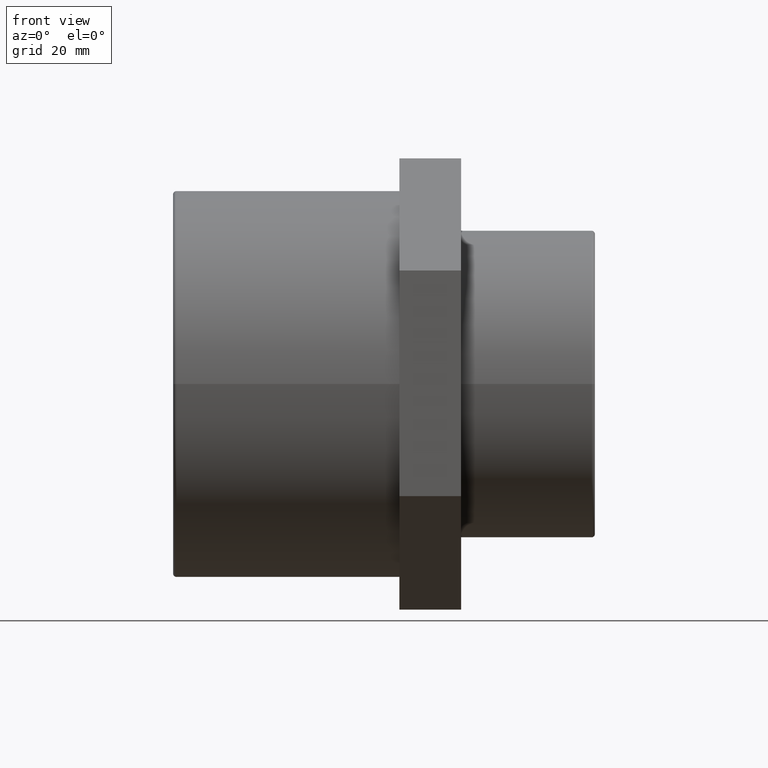
[diagram: clean part render]
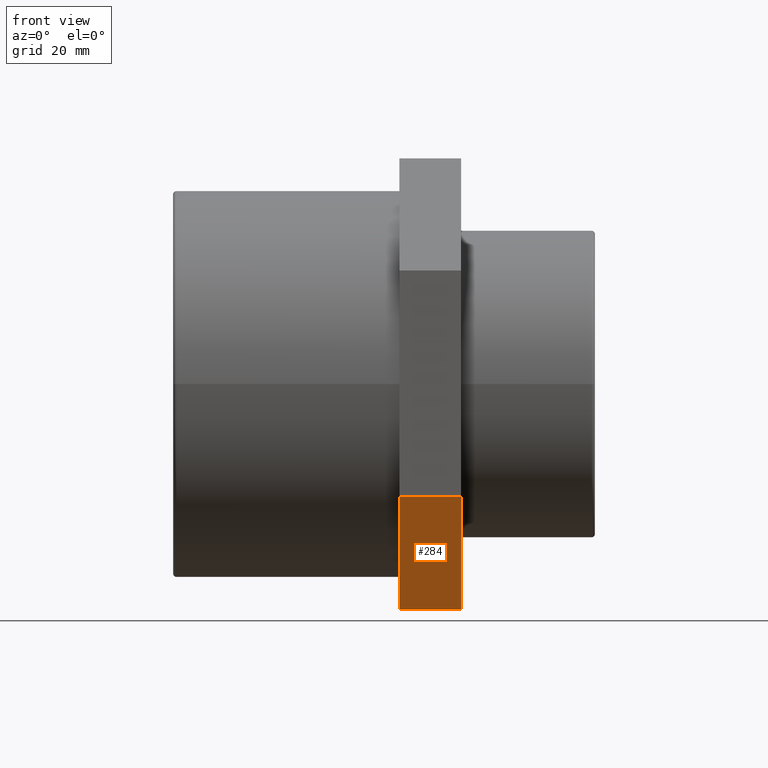
[diagram: same view with one face highlighted and labeled with its STEP entity id]
A machine part, front view. The second image highlights one B-rep face of the part: STEP entity #284.
In plain terms, the highlighted planar face has unit normal (0, -0.5031, -0.8642).
Its self-contained STEP definition (entity closure, byte-faithful):
#57=FACE_OUTER_BOUND('',#78,.T.);
#78=EDGE_LOOP('',(#220,#221,#222,#223));
#113=LINE('',#437,#131);
#121=LINE('',#455,#139);
#124=LINE('',#460,#142);
#125=LINE('',#461,#143);
#131=VECTOR('',#345,12.);
#139=VECTOR('',#359,12.);
#142=VECTOR('',#364,43.8786204584116);
#143=VECTOR('',#365,43.8786204584116);
#146=VERTEX_POINT('',#430);
#149=VERTEX_POINT('',#435);
#155=VERTEX_POINT('',#452);
#156=VERTEX_POINT('',#454);
#175=EDGE_CURVE('',#149,#146,#113,.T.);
#183=EDGE_CURVE('',#156,#155,#121,.T.);
#186=EDGE_CURVE('',#155,#146,#124,.T.);
#187=EDGE_CURVE('',#149,#156,#125,.T.);
#220=ORIENTED_EDGE('',*,*,#186,.T.);
#221=ORIENTED_EDGE('',*,*,#175,.F.);
#222=ORIENTED_EDGE('',*,*,#187,.T.);
#223=ORIENTED_EDGE('',*,*,#183,.T.);
#272=PLANE('',#307);
#284=ADVANCED_FACE('',(#57),#272,.T.);
#307=AXIS2_PLACEMENT_3D('',#459,#362,#363);
#345=DIRECTION('',(1.,7.40148683083415E-16,0.));
#359=DIRECTION('',(1.,7.40148683083415E-16,0.));
#362=DIRECTION('center_axis',(3.72391827277441E-16,-0.503131108368767,-0.864210094705921));
#363=DIRECTION('ref_axis',(-5.77315972805081E-16,0.864210094705921,-0.503131108368767));
#364=DIRECTION('',(5.8209366944984E-16,-0.864210094705921,0.503131108368766));
#365=DIRECTION('',(-5.8209366944984E-16,0.864210094705921,-0.503131108368766));
#430=CARTESIAN_POINT('',(15.,-38.0791554889776,-21.8016341263585));
#435=CARTESIAN_POINT('',(3.00000000000001,-38.0791554889776,-21.8016341263585));
#437=CARTESIAN_POINT('',(3.00000000000001,-38.0791554889776,-21.8016341263585));
#452=CARTESIAN_POINT('',(15.,-0.158808747048599,-43.8783330712915));
#454=CARTESIAN_POINT('',(2.99999999999998,-0.158808747048608,-43.8783330712915));
#455=CARTESIAN_POINT('',(2.99999999999998,-0.158808747048608,-43.8783330712915));
#459=CARTESIAN_POINT('Origin',(3.00000000000001,-38.0791554889776,-21.8016341263585));
#460=CARTESIAN_POINT('',(15.,-28.5990688034954,-27.3208088625917));
#461=CARTESIAN_POINT('',(3.00000000000001,-38.0791554889776,-21.8016341263585));